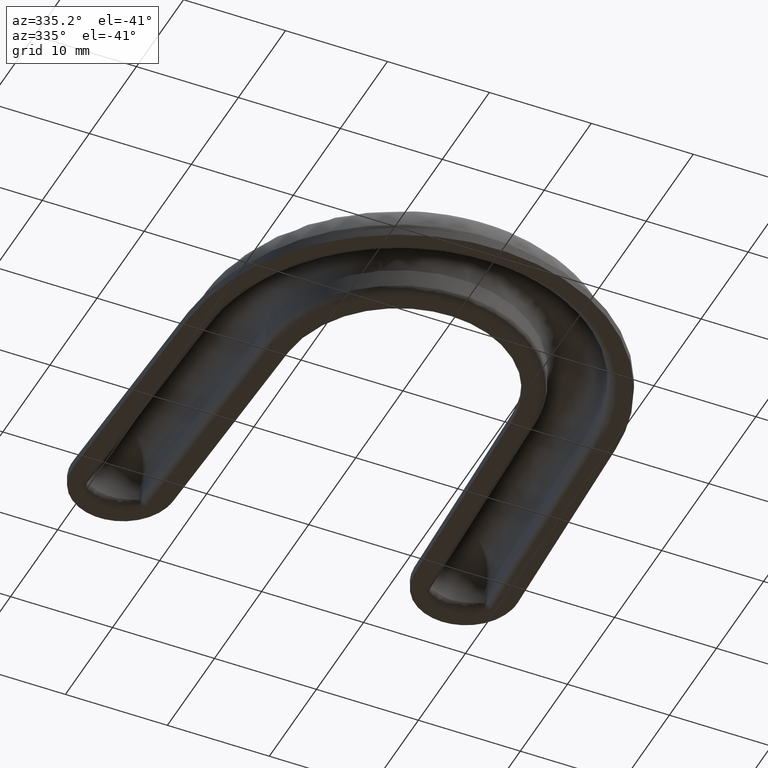
[diagram: clean part render]
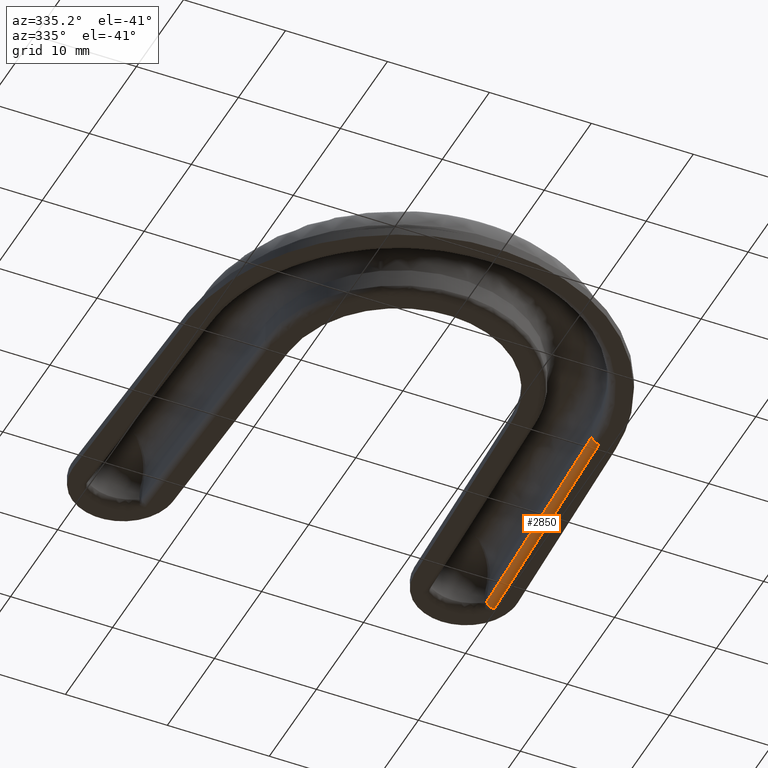
[diagram: same view with one face highlighted and labeled with its STEP entity id]
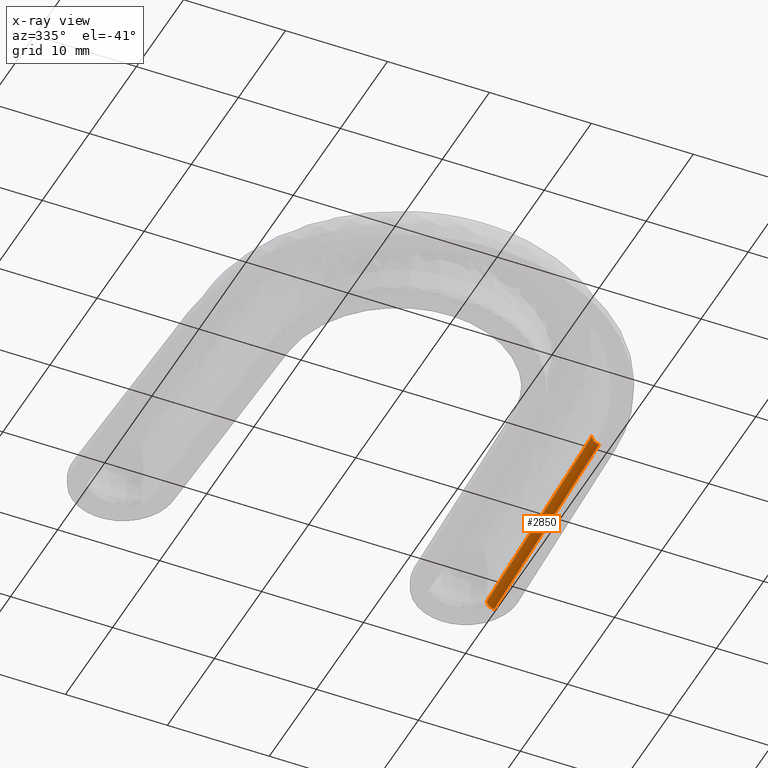
[diagram: x-ray of the same camera — body ghosted, the highlighted face saturated]
A machine part, auxiliary view. The second image highlights one B-rep face of the part: STEP entity #2850.
The next image is the same camera in x-ray: the body ghosted, the highlighted face saturated — about 0% of this face is hidden behind the body in this view.
In plain terms, the highlighted face is a freeform B-spline surface patch.
Its self-contained STEP definition (entity closure, byte-faithful):
#404=CARTESIAN_POINT('',(20.273894761335601,44.495931145409337,2.579058E-015));
#405=VERTEX_POINT('',#404);
#422=CARTESIAN_POINT('',(19.574364145388500,44.521561544405500,0.700000000000000));
#423=VERTEX_POINT('',#422);
#424=CARTESIAN_POINT('',(20.273894761335601,44.495931145409337,0.0));
#425=CARTESIAN_POINT('',(19.574364145388518,44.521561544405522,0.0));
#426=CARTESIAN_POINT('',(19.574364145388522,44.521561544405522,0.700000000000000));
#434=(BOUNDED_CURVE()B_SPLINE_CURVE(2,(#424,#425,#426),.UNSPECIFIED.,.F.,.U.)CURVE()GEOMETRIC_REPRESENTATION_ITEM()QUASI_UNIFORM_CURVE()RATIONAL_B_SPLINE_CURVE((1.0,0.707106781186547,1.0))REPRESENTATION_ITEM(''));
#435=EDGE_CURVE('',#405,#423,#434,.T.);
#2806=CARTESIAN_POINT('',(20.326580196961750,45.099969655789607,0.000666234126946));
#2807=CARTESIAN_POINT('',(19.394777306990921,19.668268430229819,0.000666234126946));
#2808=CARTESIAN_POINT('',(19.563903068453158,45.127913706647867,-0.032655042551418));
#2809=CARTESIAN_POINT('',(18.632100178482322,19.696212481088075,-0.032655042551418));
#2810=CARTESIAN_POINT('',(19.597202539417431,45.126693633204738,0.730533817733020));
#2811=CARTESIAN_POINT('',(18.665399649446599,19.694992407644929,0.730533817733019));
#2819=(BOUNDED_SURFACE()B_SPLINE_SURFACE(1,2,((#2806,#2808,#2810),(#2807,#2809,#2811)),.UNSPECIFIED.,.F.,.F.,.U.)B_SPLINE_SURFACE_WITH_KNOTS((2,2),(3,3),(0.0,25.448765861076609),(0.0,1.0),.UNSPECIFIED.)GEOMETRIC_REPRESENTATION_ITEM()RATIONAL_B_SPLINE_SURFACE(((1.0,0.675590207615661,1.0),(1.0,0.675590207615661,1.0)))REPRESENTATION_ITEM('')SURFACE());
#2820=CARTESIAN_POINT('',(19.386991109600650,20.289671808285949,2.470520E-015));
#2821=VERTEX_POINT('',#2820);
#2822=CARTESIAN_POINT('',(18.687460740300299,20.315302198245099,0.700000000000000));
#2823=VERTEX_POINT('',#2822);
#2824=CARTESIAN_POINT('',(19.386991109600650,20.289671808285949,0.0));
#2825=CARTESIAN_POINT('',(18.687460493653578,20.315302207282116,0.0));
#2826=CARTESIAN_POINT('',(18.687460740300299,20.315302198245099,0.700000000000000));
#2834=(BOUNDED_CURVE()B_SPLINE_CURVE(2,(#2824,#2825,#2826),.UNSPECIFIED.,.F.,.U.)CURVE()GEOMETRIC_REPRESENTATION_ITEM()QUASI_UNIFORM_CURVE()RATIONAL_B_SPLINE_CURVE((1.0,0.707106781186547,1.0))REPRESENTATION_ITEM(''));
#2835=EDGE_CURVE('',#2821,#2823,#2834,.T.);
#2836=ORIENTED_EDGE('',*,*,#2835,.T.);
#2837=CARTESIAN_POINT('',(19.574364145388500,44.521561544405500,0.700000000000000));
#2838=CARTESIAN_POINT('',(18.687460740300299,20.315302198245099,0.700000000000000));
#2839=QUASI_UNIFORM_CURVE('',1,(#2837,#2838),.UNSPECIFIED.,.F.,.U.);
#2840=EDGE_CURVE('',#423,#2823,#2839,.T.);
#2841=ORIENTED_EDGE('',*,*,#2840,.F.);
#2842=ORIENTED_EDGE('',*,*,#435,.F.);
#2843=CARTESIAN_POINT('',(19.386991109600650,20.289671808285949,2.470520E-015));
#2844=CARTESIAN_POINT('',(20.273894761335601,44.495931145409337,2.579058E-015));
#2845=QUASI_UNIFORM_CURVE('',1,(#2843,#2844),.UNSPECIFIED.,.F.,.U.);
#2846=EDGE_CURVE('',#2821,#405,#2845,.T.);
#2847=ORIENTED_EDGE('',*,*,#2846,.F.);
#2848=EDGE_LOOP('',(#2836,#2841,#2842,#2847));
#2849=FACE_OUTER_BOUND('',#2848,.T.);
#2850=ADVANCED_FACE('',(#2849),#2819,.T.);